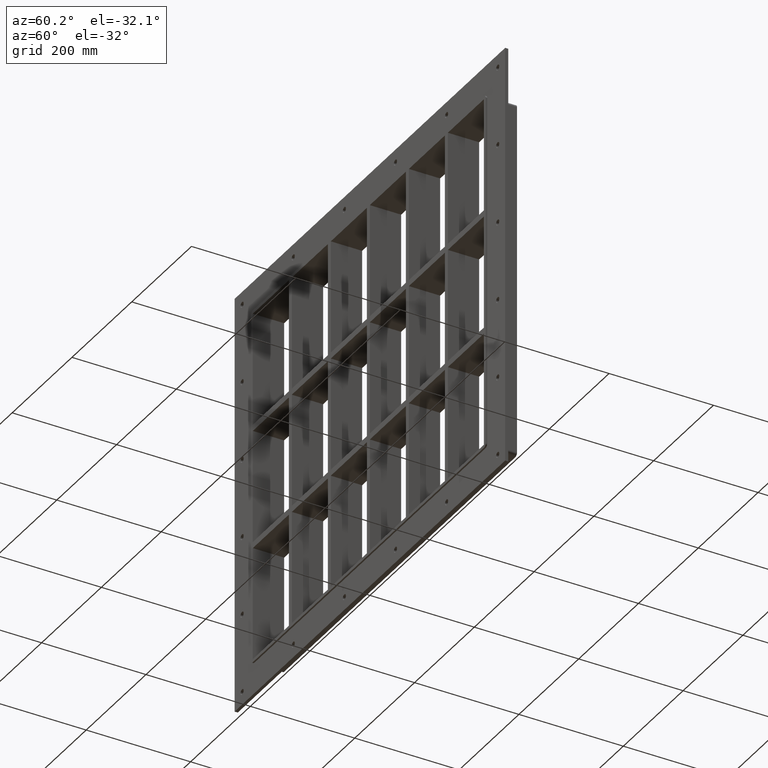
[diagram: clean part render]
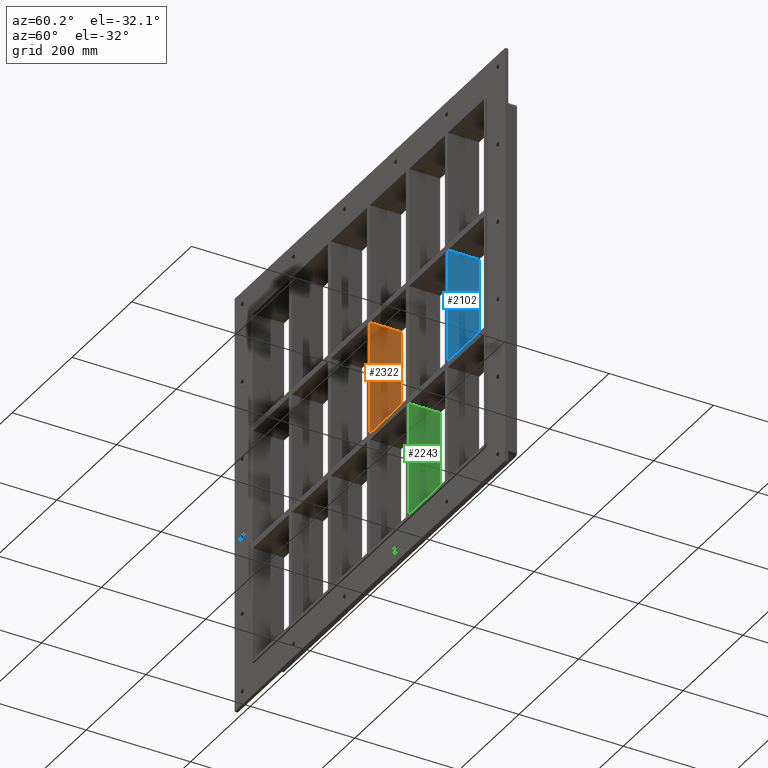
[diagram: same view with three faces highlighted in distinct colors, each labeled with its STEP entity id]
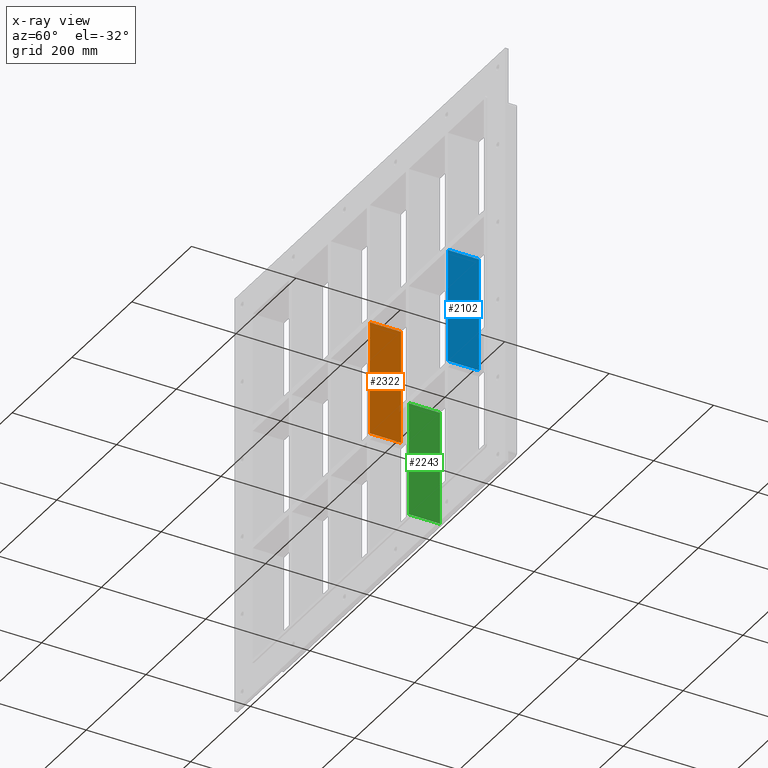
[diagram: x-ray of the same camera — body ghosted, the three highlighted faces saturated]
A machine part, auxiliary view with three faces highlighted in distinct colors.
The next image is the same camera in x-ray (body ghosted, the three faces saturated) — at least one of them is partly hidden behind the body in this view.
Their STEP definitions:

[orange] entity #2322 — the highlighted planar face has unit normal (1, 0, 0).
#763=CARTESIAN_POINT('',(4.999999999996376,-3.0,108.99999999998984));
#764=VERTEX_POINT('',#763);
#771=CARTESIAN_POINT('',(4.999999999996376,57.0,108.99999999998984));
#772=VERTEX_POINT('',#771);
#773=CARTESIAN_POINT('',(4.999999999996376,57.0,108.99999999998988));
#774=DIRECTION('',(0.0,-1.0,0.0));
#775=VECTOR('',#774,60.0);
#776=LINE('',#773,#775);
#777=EDGE_CURVE('',#772,#764,#776,.T.);
#1734=CARTESIAN_POINT('',(4.999999999996376,57.0,-108.99999999999991));
#1735=VERTEX_POINT('',#1734);
#1736=CARTESIAN_POINT('',(4.999999999996376,57.0,108.99999999998983));
#1737=DIRECTION('',(0.0,0.0,-1.0));
#1738=VECTOR('',#1737,217.99999999998977);
#1739=LINE('',#1736,#1738);
#1740=EDGE_CURVE('',#772,#1735,#1739,.T.);
#2299=CARTESIAN_POINT('',(4.999999999996376,-3.0,339.00000000000011));
#2300=DIRECTION('',(1.0,0.0,0.0));
#2301=DIRECTION('',(0.0,0.0,-1.0));
#2302=AXIS2_PLACEMENT_3D('',#2299,#2300,#2301);
#2303=PLANE('',#2302);
#2304=ORIENTED_EDGE('',*,*,#777,.T.);
#2305=CARTESIAN_POINT('',(4.999999999996376,-3.0,-108.99999999999991));
#2306=VERTEX_POINT('',#2305);
#2307=CARTESIAN_POINT('',(4.999999999996376,-3.0,108.99999999998983));
#2308=DIRECTION('',(0.0,0.0,-1.0));
#2309=VECTOR('',#2308,217.99999999998977);
#2310=LINE('',#2307,#2309);
#2311=EDGE_CURVE('',#764,#2306,#2310,.T.);
#2312=ORIENTED_EDGE('',*,*,#2311,.T.);
#2313=CARTESIAN_POINT('',(4.999999999996376,57.0,-108.99999999999991));
#2314=DIRECTION('',(0.0,-1.0,0.0));
#2315=VECTOR('',#2314,60.0);
#2316=LINE('',#2313,#2315);
#2317=EDGE_CURVE('',#1735,#2306,#2316,.T.);
#2318=ORIENTED_EDGE('',*,*,#2317,.F.);
#2319=ORIENTED_EDGE('',*,*,#1740,.F.);
#2320=EDGE_LOOP('',(#2304,#2312,#2318,#2319));
#2321=FACE_OUTER_BOUND('',#2320,.T.);
#2322=ADVANCED_FACE('',(#2321),#2303,.T.);

[blue] entity #2102 — the highlighted planar face has unit normal (1, 0, 0).
#793=CARTESIAN_POINT('',(265.99999999999642,57.0,108.99999999998985));
#794=VERTEX_POINT('',#793);
#795=CARTESIAN_POINT('',(265.99999999999642,-3.0,108.99999999998985));
#796=VERTEX_POINT('',#795);
#797=CARTESIAN_POINT('',(265.99999999999642,57.0,108.99999999998988));
#798=DIRECTION('',(0.0,-1.0,0.0));
#799=VECTOR('',#798,60.0);
#800=LINE('',#797,#799);
#801=EDGE_CURVE('',#794,#796,#800,.T.);
#1691=CARTESIAN_POINT('',(265.99999999999642,57.0,-108.99999999999984));
#1692=VERTEX_POINT('',#1691);
#1693=CARTESIAN_POINT('',(265.99999999999642,57.0,108.99999999998985));
#1694=DIRECTION('',(0.0,0.0,-1.0));
#1695=VECTOR('',#1694,217.99999999998974);
#1696=LINE('',#1693,#1695);
#1697=EDGE_CURVE('',#794,#1692,#1696,.T.);
#2079=CARTESIAN_POINT('',(265.99999999999642,-3.0,339.00000000000011));
#2080=DIRECTION('',(1.0,0.0,0.0));
#2081=DIRECTION('',(0.0,0.0,-1.0));
#2082=AXIS2_PLACEMENT_3D('',#2079,#2080,#2081);
#2083=PLANE('',#2082);
#2084=ORIENTED_EDGE('',*,*,#801,.T.);
#2085=CARTESIAN_POINT('',(265.99999999999642,-3.0,-108.99999999999984));
#2086=VERTEX_POINT('',#2085);
#2087=CARTESIAN_POINT('',(265.99999999999642,-3.0,108.99999999998985));
#2088=DIRECTION('',(0.0,0.0,-1.0));
#2089=VECTOR('',#2088,217.99999999998974);
#2090=LINE('',#2087,#2089);
#2091=EDGE_CURVE('',#796,#2086,#2090,.T.);
#2092=ORIENTED_EDGE('',*,*,#2091,.T.);
#2093=CARTESIAN_POINT('',(265.99999999999636,57.0,-108.9999999999998));
#2094=DIRECTION('',(0.0,-1.0,0.0));
#2095=VECTOR('',#2094,60.0);
#2096=LINE('',#2093,#2095);
#2097=EDGE_CURVE('',#1692,#2086,#2096,.T.);
#2098=ORIENTED_EDGE('',*,*,#2097,.F.);
#2099=ORIENTED_EDGE('',*,*,#1697,.F.);
#2100=EDGE_LOOP('',(#2084,#2092,#2098,#2099));
#2101=FACE_OUTER_BOUND('',#2100,.T.);
#2102=ADVANCED_FACE('',(#2101),#2083,.T.);

[green] entity #2243 — the highlighted planar face has unit normal (1, 0, 0).
#1954=CARTESIAN_POINT('',(135.49999999999642,57.0,-121.0000000000101));
#1955=VERTEX_POINT('',#1954);
#1962=CARTESIAN_POINT('',(135.49999999999642,57.0,-338.99999999998664));
#1963=VERTEX_POINT('',#1962);
#1964=CARTESIAN_POINT('',(135.49999999999642,57.0,-121.00000000001012));
#1965=DIRECTION('',(0.0,0.0,-1.0));
#1966=VECTOR('',#1965,217.99999999997658);
#1967=LINE('',#1964,#1966);
#1968=EDGE_CURVE('',#1955,#1963,#1967,.T.);
#2213=CARTESIAN_POINT('',(135.49999999999642,-3.0,339.00000000000011));
#2214=DIRECTION('',(1.0,0.0,0.0));
#2215=DIRECTION('',(0.0,0.0,-1.0));
#2216=AXIS2_PLACEMENT_3D('',#2213,#2214,#2215);
#2217=PLANE('',#2216);
#2218=CARTESIAN_POINT('',(135.49999999999642,-3.0,-121.0000000000101));
#2219=VERTEX_POINT('',#2218);
#2220=CARTESIAN_POINT('',(135.49999999999642,-3.0,-121.00000000001012));
#2221=DIRECTION('',(0.0,1.0,0.0));
#2222=VECTOR('',#2221,60.0);
#2223=LINE('',#2220,#2222);
#2224=EDGE_CURVE('',#2219,#1955,#2223,.T.);
#2225=ORIENTED_EDGE('',*,*,#2224,.F.);
#2226=CARTESIAN_POINT('',(135.49999999999642,-3.0,-338.99999999998658));
#2227=VERTEX_POINT('',#2226);
#2228=CARTESIAN_POINT('',(135.49999999999642,-3.0,-121.00000000001012));
#2229=DIRECTION('',(0.0,0.0,-1.0));
#2230=VECTOR('',#2229,217.99999999997658);
#2231=LINE('',#2228,#2230);
#2232=EDGE_CURVE('',#2219,#2227,#2231,.T.);
#2233=ORIENTED_EDGE('',*,*,#2232,.T.);
#2234=CARTESIAN_POINT('',(135.49999999999642,57.000000000000007,-339.0));
#2235=DIRECTION('',(0.0,-1.0,0.0));
#2236=VECTOR('',#2235,60.000000000000007);
#2237=LINE('',#2234,#2236);
#2238=EDGE_CURVE('',#1963,#2227,#2237,.T.);
#2239=ORIENTED_EDGE('',*,*,#2238,.F.);
#2240=ORIENTED_EDGE('',*,*,#1968,.F.);
#2241=EDGE_LOOP('',(#2225,#2233,#2239,#2240));
#2242=FACE_OUTER_BOUND('',#2241,.T.);
#2243=ADVANCED_FACE('',(#2242),#2217,.T.);